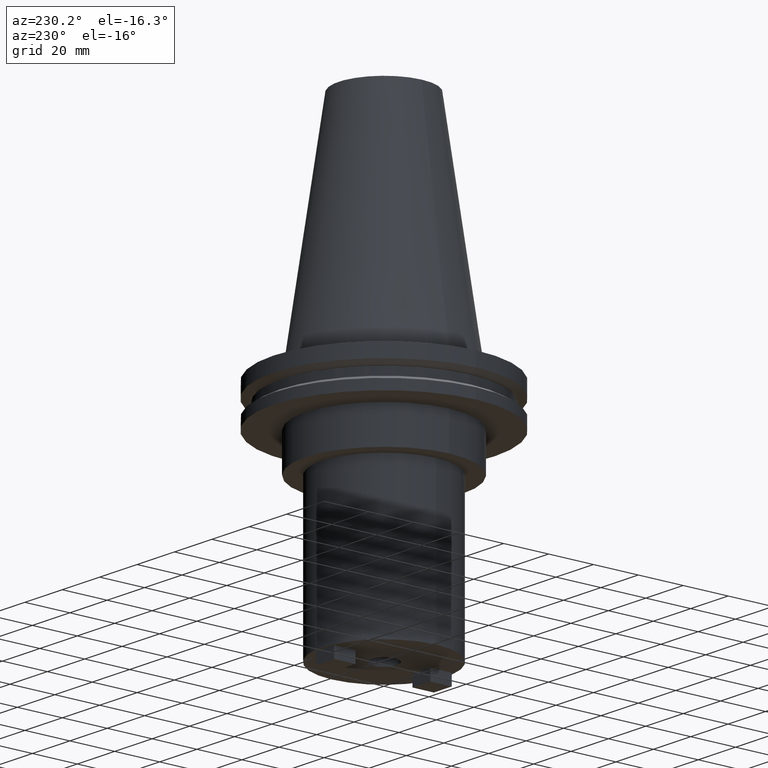
[diagram: clean part render]
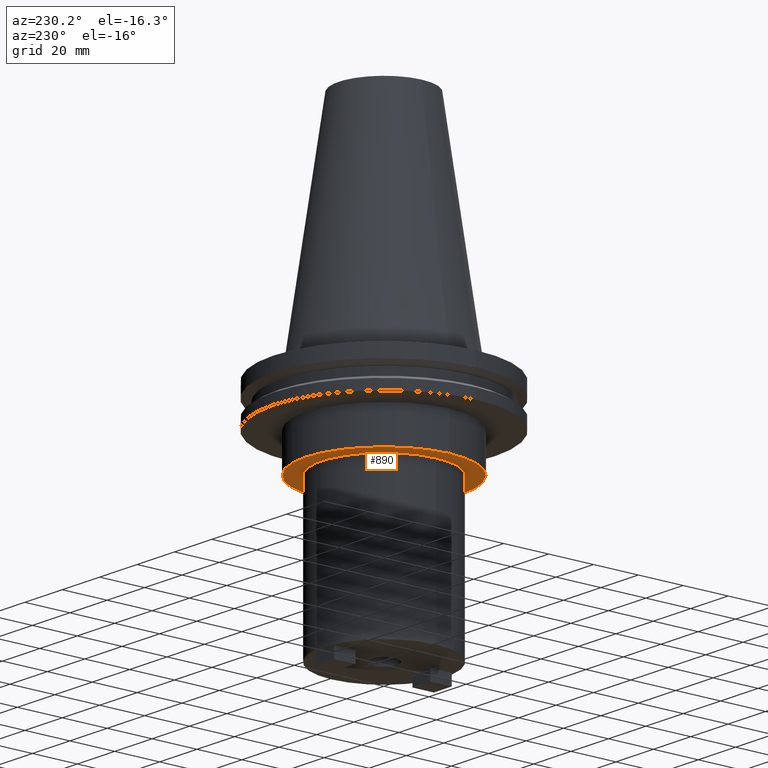
[diagram: same view with one face highlighted and labeled with its STEP entity id]
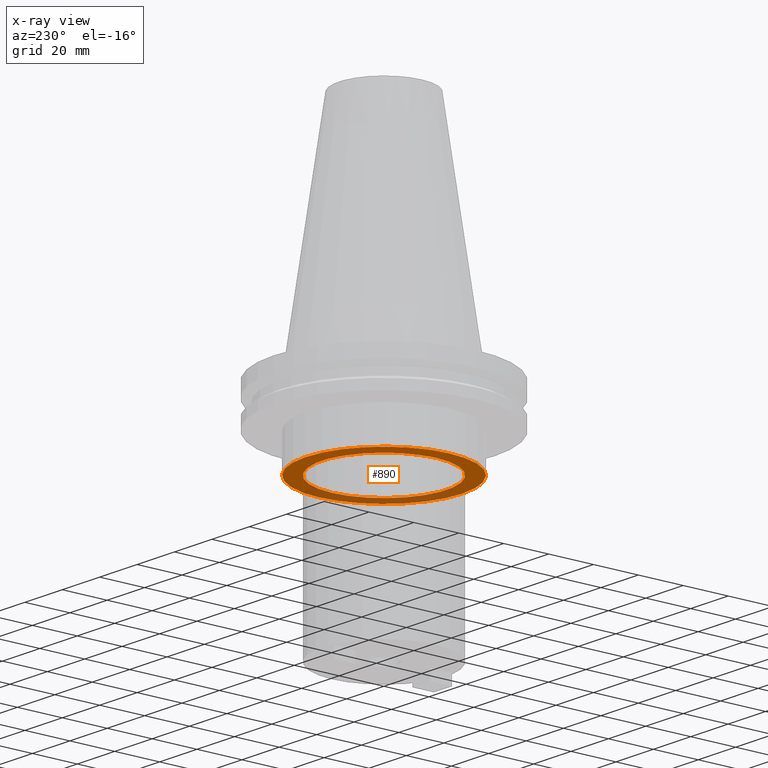
[diagram: x-ray of the same camera — body ghosted, the highlighted face saturated]
A machine part, auxiliary view. The second image highlights one B-rep face of the part: STEP entity #890.
The next image is the same camera in x-ray: the body ghosted, the highlighted face saturated — about 32% of this face is hidden behind the body in this view.
In plain terms, the highlighted planar face has unit normal (0, -0, 1).
Its self-contained STEP definition (entity closure, byte-faithful):
#1 = EDGE_CURVE ( 'NONE', #269, #75, #1081, .T. ) ;
#11 = AXIS2_PLACEMENT_3D ( 'NONE', #192, #457, #791 ) ;
#39 = EDGE_CURVE ( 'NONE', #75, #269, #111, .T. ) ;
#45 = AXIS2_PLACEMENT_3D ( 'NONE', #1013, #240, #1086 ) ;
#52 = CARTESIAN_POINT ( 'NONE',  ( 0.000000000000000000, 0.000000000000000000, -35.04999999999999716 ) ) ;
#75 = VERTEX_POINT ( 'NONE', #566 ) ;
#111 = CIRCLE ( 'NONE', #145, 27.80030000000000001 ) ;
#117 = DIRECTION ( 'NONE',  ( 0.000000000000000000, 0.000000000000000000, -1.000000000000000000 ) ) ;
#145 = AXIS2_PLACEMENT_3D ( 'NONE', #52, #117, #636 ) ;
#178 = AXIS2_PLACEMENT_3D ( 'NONE', #868, #278, #450 ) ;
#192 = CARTESIAN_POINT ( 'NONE',  ( 0.000000000000000000, 0.000000000000000000, -35.04999999999999716 ) ) ;
#229 = CIRCLE ( 'NONE', #178, 34.92499999999999716 ) ;
#240 = DIRECTION ( 'NONE',  ( -0.000000000000000000, -0.000000000000000000, 1.000000000000000000 ) ) ;
#269 = VERTEX_POINT ( 'NONE', #670 ) ;
#275 = EDGE_LOOP ( 'NONE', ( #690, #549 ) ) ;
#278 = DIRECTION ( 'NONE',  ( -0.000000000000000000, -0.000000000000000000, 1.000000000000000000 ) ) ;
#295 = ORIENTED_EDGE ( 'NONE', *, *, #673, .F. ) ;
#296 = ORIENTED_EDGE ( 'NONE', *, *, #478, .F. ) ;
#358 = AXIS2_PLACEMENT_3D ( 'NONE', #977, #454, #805 ) ;
#361 = EDGE_LOOP ( 'NONE', ( #296, #295 ) ) ;
#450 = DIRECTION ( 'NONE',  ( 1.000000000000000000, 0.000000000000000000, 0.000000000000000000 ) ) ;
#454 = DIRECTION ( 'NONE',  ( 0.000000000000000000, -0.000000000000000000, 1.000000000000000000 ) ) ;
#457 = DIRECTION ( 'NONE',  ( 0.000000000000000000, 0.000000000000000000, -1.000000000000000000 ) ) ;
#478 = EDGE_CURVE ( 'NONE', #960, #650, #229, .T. ) ;
#549 = ORIENTED_EDGE ( 'NONE', *, *, #1, .F. ) ;
#550 = FACE_OUTER_BOUND ( 'NONE', #361, .T. ) ;
#566 = CARTESIAN_POINT ( 'NONE',  ( 27.80030000000000001, 0.000000000000000000, -35.04999999999999716 ) ) ;
#580 = CARTESIAN_POINT ( 'NONE',  ( 34.92499999999999716, 0.000000000000000000, -35.04999999999999716 ) ) ;
#633 = FACE_BOUND ( 'NONE', #275, .T. ) ;
#636 = DIRECTION ( 'NONE',  ( 1.000000000000000000, 0.000000000000000000, 0.000000000000000000 ) ) ;
#650 = VERTEX_POINT ( 'NONE', #664 ) ;
#664 = CARTESIAN_POINT ( 'NONE',  ( -34.92499999999999716, 4.277078946022130887E-15, -35.04999999999999716 ) ) ;
#670 = CARTESIAN_POINT ( 'NONE',  ( -27.80030000000000001, 3.404554841033616429E-15, -35.04999999999999716 ) ) ;
#673 = EDGE_CURVE ( 'NONE', #650, #960, #974, .T. ) ;
#690 = ORIENTED_EDGE ( 'NONE', *, *, #39, .F. ) ;
#791 = DIRECTION ( 'NONE',  ( 1.000000000000000000, 0.000000000000000000, 0.000000000000000000 ) ) ;
#805 = DIRECTION ( 'NONE',  ( 1.000000000000000000, 0.000000000000000000, 0.000000000000000000 ) ) ;
#868 = CARTESIAN_POINT ( 'NONE',  ( 0.000000000000000000, 0.000000000000000000, -35.04999999999999716 ) ) ;
#889 = PLANE ( 'NONE',  #358 ) ;
#890 = ADVANCED_FACE ( 'NONE', ( #550, #633 ), #889, .F. ) ;
#960 = VERTEX_POINT ( 'NONE', #580 ) ;
#974 = CIRCLE ( 'NONE', #45, 34.92499999999999716 ) ;
#977 = CARTESIAN_POINT ( 'NONE',  ( 0.000000000000000000, 34.92499999999999716, -35.04999999999999716 ) ) ;
#1013 = CARTESIAN_POINT ( 'NONE',  ( 0.000000000000000000, 0.000000000000000000, -35.04999999999999716 ) ) ;
#1081 = CIRCLE ( 'NONE', #11, 27.80030000000000001 ) ;
#1086 = DIRECTION ( 'NONE',  ( 1.000000000000000000, 0.000000000000000000, 0.000000000000000000 ) ) ;